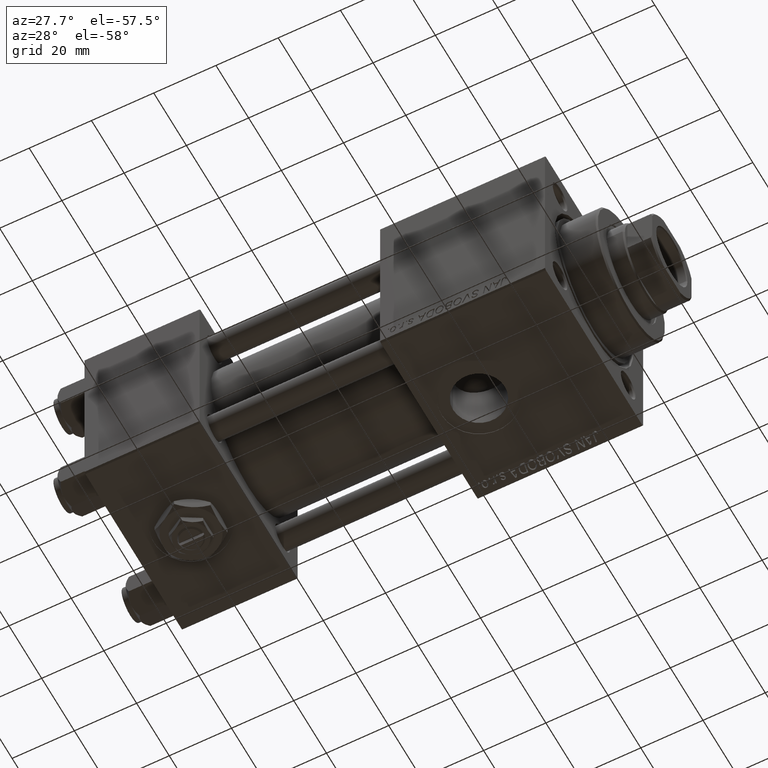
[diagram: clean part render]
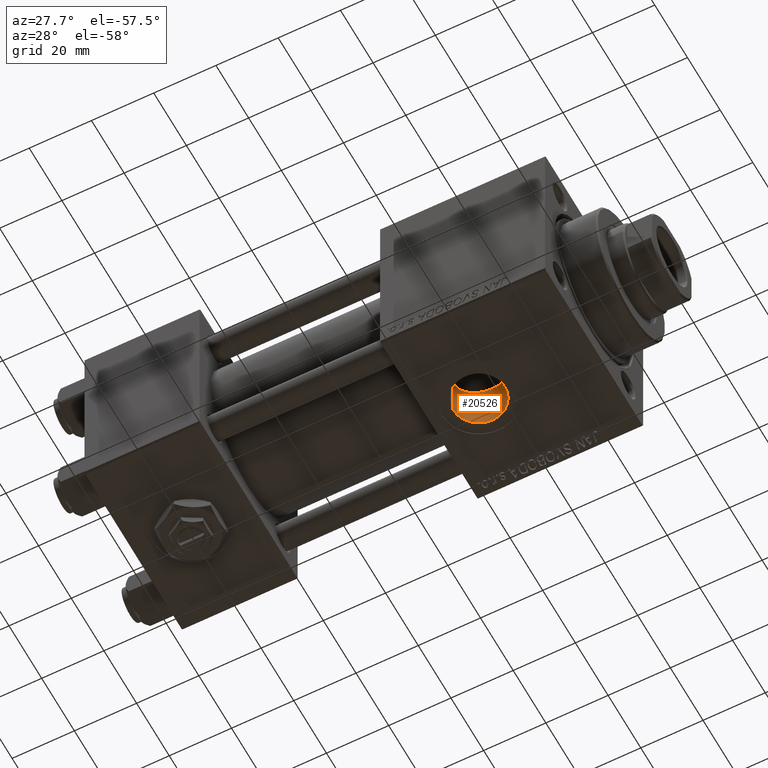
[diagram: same view with one face highlighted and labeled with its STEP entity id]
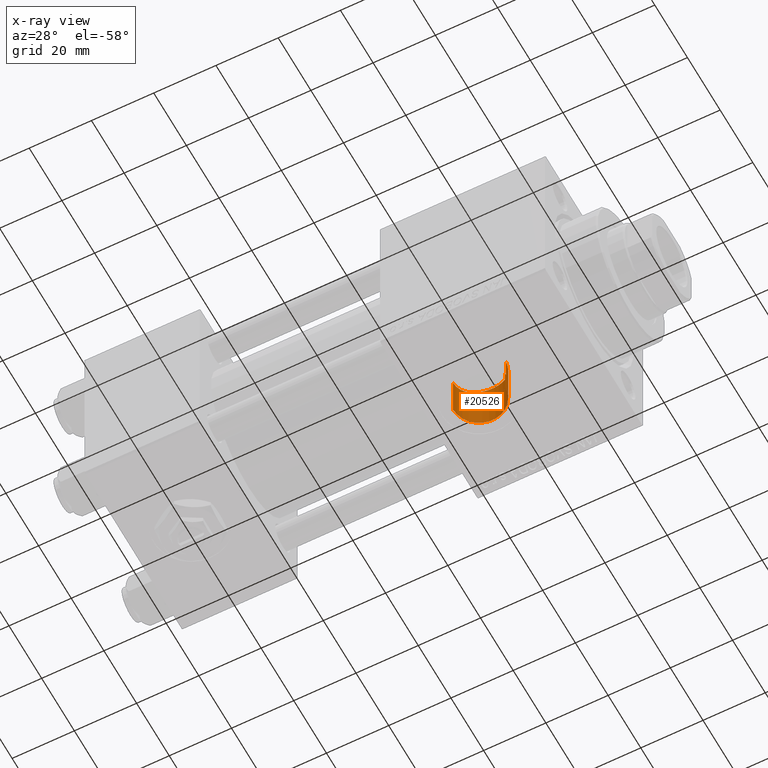
[diagram: x-ray of the same camera — body ghosted, the highlighted face saturated]
A machine part, auxiliary view. The second image highlights one B-rep face of the part: STEP entity #20526.
The next image is the same camera in x-ray: the body ghosted, the highlighted face saturated — about 0% of this face is hidden behind the body in this view.
In plain terms, the highlighted cylindrical surface (edge-blend (fillet) strip) has radius 8.33 mm, axis along (-0, -0, -1).
Its self-contained STEP definition (entity closure, byte-faithful):
#84 = CARTESIAN_POINT ( 'NONE',  ( 102.7241636785291661, 1.092628521130927011, -15.47069851291994702 ) ) ;
#999 = CARTESIAN_POINT ( 'NONE',  ( 119.2999999999999829, 0.7063285354565422836, 30.00100000000002254 ) ) ;
#2366 = DIRECTION ( 'NONE',  ( -1.000000000000000000, 0.000000000000000000, 0.000000000000000000 ) ) ;
#2750 = CARTESIAN_POINT ( 'NONE',  ( 103.7482205783579872, 4.107379890074528639, -14.94784029201489695 ) ) ;
#2889 = CYLINDRICAL_SURFACE ( 'NONE', #11455, 8.330000000000003624 ) ;
#2996 = CARTESIAN_POINT ( 'NONE',  ( 118.8608968568053257, 2.807338721058672881, -15.25250935042505240 ) ) ;
#3259 = CARTESIAN_POINT ( 'NONE',  ( 109.5815972184918508, 8.212856289219738315, -13.14537772390143822 ) ) ;
#3791 = CARTESIAN_POINT ( 'NONE',  ( 112.5374356531859519, 8.191334636277414205, -13.15881439070363079 ) ) ;
#3807 = CARTESIAN_POINT ( 'NONE',  ( 102.6700000000000017, 3.469446951953613794E-15, 30.00100000000002254 ) ) ;
#4362 = VECTOR ( 'NONE', #36032, 1000.000000000000000 ) ;
#5356 = CARTESIAN_POINT ( 'NONE',  ( 111.0000000000000000, 3.469446951953613794E-15, -29.79999999999999716 ) ) ;
#5409 = VERTEX_POINT ( 'NONE', #24785 ) ;
#6959 = CARTESIAN_POINT ( 'NONE',  ( 118.6620067053760579, 3.310790277918178148, -15.15004979849471844 ) ) ;
#7213 = CARTESIAN_POINT ( 'NONE',  ( 117.9018301075746535, 4.693553005916263565, -14.77882288425788282 ) ) ;
#7389 = B_SPLINE_CURVE_WITH_KNOTS ( 'NONE', 3,
 ( #39714, #36013, #15928, #2996, #6959, #23067, #7213, #23322, #31524, #47664, #52148, #39191, #19098, #19626, #35224, #32038, #39452, #15144, #14886, #31776, #3791, #15670, #47397, #35761, #51108, #3259, #44232, #19358, #28063, #48180, #35491, #11433, #22803, #38933, #51896, #23856, #47919, #19876, #2750, #18844, #39989, #34968, #47143, #84, #40776, #17237 ),
 .UNSPECIFIED., .F., .F.,
 ( 4, 2, 2, 2, 2, 2, 2, 2, 2, 2, 2, 2, 2, 2, 2, 2, 2, 2, 2, 2, 2, 2, 4 ),
 ( 0.02727877960990376244, 0.02889237716072041995, 0.03050597471153707746, 0.03211957226235373497, 0.03292637103776206026, 0.03373316981317039248, 0.03453996858857871777, 0.03534676736398704999, 0.03696036491480367281, 0.03776716369021198422, 0.03857396246562030256, 0.04018756001643689069, 0.04099435879184516046, 0.04180115756725343718, 0.04260795634266170695, 0.04341475511806998366, 0.04502835266888653015, 0.04664195021970307664, 0.04825554777051961619, 0.04906234654592787903, 0.04986914532133614186, 0.05148274287215264672, 0.05309634042296915157 ),
 .UNSPECIFIED. ) ;
#8112 = CARTESIAN_POINT ( 'NONE',  ( 119.3300000000000125, 0.2354428451521807242, -22.50000000000000355 ) ) ;
#8820 = B_SPLINE_CURVE_WITH_KNOTS ( 'NONE', 3,
 ( #51998, #15519, #8112, #20522 ),
 .UNSPECIFIED., .F., .F.,
 ( 4, 4 ),
 ( 3.252606517456513302E-19, 0.0007063285354565423772 ),
 .UNSPECIFIED. ) ;
#9195 = EDGE_CURVE ( 'NONE', #41752, #16056, #32331, .T. ) ;
#9691 = DIRECTION ( 'NONE',  ( 0.000000000000000000, 0.000000000000000000, 1.000000000000000000 ) ) ;
#10124 = VERTEX_POINT ( 'NONE', #39746 ) ;
#10631 = EDGE_CURVE ( 'NONE', #10124, #41752, #7389, .T. ) ;
#11433 = CARTESIAN_POINT ( 'NONE',  ( 107.0634977992651500, 7.360363982442543751, -13.64326802313376241 ) ) ;
#11444 = VECTOR ( 'NONE', #9691, 1000.000000000000000 ) ;
#11455 = AXIS2_PLACEMENT_3D ( 'NONE', #50996, #30623, #2366 ) ;
#14886 = CARTESIAN_POINT ( 'NONE',  ( 113.3248544130090636, 8.003497372844002200, -13.27403859793056284 ) ) ;
#15144 = CARTESIAN_POINT ( 'NONE',  ( 113.5785975221357944, 7.925227669577924239, -13.32109288933258817 ) ) ;
#15519 = CARTESIAN_POINT ( 'NONE',  ( 119.3200361445783102, 0.4708856903043617259, -22.49630535626710071 ) ) ;
#15670 = CARTESIAN_POINT ( 'NONE',  ( 111.7376232254467823, 8.314799938780428334, -13.08141961516124319 ) ) ;
#15928 = CARTESIAN_POINT ( 'NONE',  ( 119.1553276736675855, 1.779179761350267786, -15.40632050673880293 ) ) ;
#16056 = VERTEX_POINT ( 'NONE', #34819 ) ;
#16708 = EDGE_LOOP ( 'NONE', ( #33289, #27555, #25087, #24022, #31730, #26397 ) ) ;
#17237 = CARTESIAN_POINT ( 'NONE',  ( 102.6700000000000017, -1.540743955509788682E-30, -15.50000000000000000 ) ) ;
#17786 = VERTEX_POINT ( 'NONE', #18066 ) ;
#18066 = CARTESIAN_POINT ( 'NONE',  ( 119.2999999999999829, 0.7063285354565420615, -22.48891060056043756 ) ) ;
#18844 = CARTESIAN_POINT ( 'NONE',  ( 103.5022274938523026, 3.638994612196399636, -15.06871650703464205 ) ) ;
#19098 = CARTESIAN_POINT ( 'NONE',  ( 116.1151320338252759, 6.579683458588015732, -14.03519798445459799 ) ) ;
#19358 = CARTESIAN_POINT ( 'NONE',  ( 108.7963523345408703, 8.037691448606349098, -13.25333470569585259 ) ) ;
#19626 = CARTESIAN_POINT ( 'NONE',  ( 115.6938544255937273, 6.886547812221742504, -13.88720548231497354 ) ) ;
#19829 = EDGE_CURVE ( 'NONE', #17786, #10124, #29752, .T. ) ;
#19876 = CARTESIAN_POINT ( 'NONE',  ( 103.8834302777606950, 4.337338501916159217, -14.88255844981647158 ) ) ;
#20522 = CARTESIAN_POINT ( 'NONE',  ( 119.3300000000000125, -2.805347151146962182E-23, -22.50000000000000355 ) ) ;
#20526 = ADVANCED_FACE ( 'NONE', ( #23465 ), #2889, .F. ) ;
#20782 = VECTOR ( 'NONE', #35047, 1000.000000000000000 ) ;
#21457 = DIRECTION ( 'NONE',  ( 0.000000000000000000, 0.000000000000000000, -1.000000000000000000 ) ) ;
#22207 = EDGE_CURVE ( 'NONE', #34164, #5409, #38760, .T. ) ;
#22803 = CARTESIAN_POINT ( 'NONE',  ( 106.6106925150427855, 7.098942783672828938, -13.78287255468627137 ) ) ;
#23067 = CARTESIAN_POINT ( 'NONE',  ( 118.1826588342739086, 4.251716252057783585, -14.91335810852857868 ) ) ;
#23322 = CARTESIAN_POINT ( 'NONE',  ( 117.4187433732684127, 5.315786223261380172, -14.56161660820965054 ) ) ;
#23465 = FACE_OUTER_BOUND ( 'NONE', #16708, .T. ) ;
#23856 = CARTESIAN_POINT ( 'NONE',  ( 104.6391980563367525, 5.403576131623844425, -14.53319674159203245 ) ) ;
#24022 = ORIENTED_EDGE ( 'NONE', *, *, #10631, .T. ) ;
#24785 = CARTESIAN_POINT ( 'NONE',  ( 119.3300000000000125, 4.489577735643358162E-15, -29.79999999999999716 ) ) ;
#25087 = ORIENTED_EDGE ( 'NONE', *, *, #19829, .T. ) ;
#25839 = CARTESIAN_POINT ( 'NONE',  ( 119.3300000000000125, -2.805347151146962182E-23, -22.50000000000000355 ) ) ;
#26397 = ORIENTED_EDGE ( 'NONE', *, *, #47685, .T. ) ;
#27555 = ORIENTED_EDGE ( 'NONE', *, *, #34324, .F. ) ;
#28063 = CARTESIAN_POINT ( 'NONE',  ( 108.5404657518221825, 7.963067281542585363, -13.29848403413182467 ) ) ;
#29752 = LINE ( 'NONE', #999, #11444 ) ;
#29894 = DIRECTION ( 'NONE',  ( -1.000000000000000000, 0.000000000000000000, 0.000000000000000000 ) ) ;
#30037 = CARTESIAN_POINT ( 'NONE',  ( 102.6700000000000017, -1.540743955509788682E-30, -15.50000000000000000 ) ) ;
#30623 = DIRECTION ( 'NONE',  ( -0.000000000000000000, -0.000000000000000000, -1.000000000000000000 ) ) ;
#31524 = CARTESIAN_POINT ( 'NONE',  ( 117.2479702458790598, 5.515379064573072476, -14.48696430920223577 ) ) ;
#31550 = CIRCLE ( 'NONE', #42561, 8.330000000000003624 ) ;
#31730 = ORIENTED_EDGE ( 'NONE', *, *, #9195, .T. ) ;
#31776 = CARTESIAN_POINT ( 'NONE',  ( 112.8048813492921312, 8.136542358630352467, -13.19290526543283271 ) ) ;
#32038 = CARTESIAN_POINT ( 'NONE',  ( 114.7956503352217368, 7.433569550751719213, -13.60453305702427151 ) ) ;
#32331 = LINE ( 'NONE', #3807, #4362 ) ;
#33289 = ORIENTED_EDGE ( 'NONE', *, *, #22207, .F. ) ;
#34164 = VERTEX_POINT ( 'NONE', #25839 ) ;
#34324 = EDGE_CURVE ( 'NONE', #17786, #34164, #8820, .T. ) ;
#34539 = CARTESIAN_POINT ( 'NONE',  ( 119.3300000000000125, 4.489577735643358951E-15, 30.00100000000002254 ) ) ;
#34819 = CARTESIAN_POINT ( 'NONE',  ( 102.6700000000000017, 3.469446951953613794E-15, -29.79999999999999716 ) ) ;
#34968 = CARTESIAN_POINT ( 'NONE',  ( 103.0906070865618176, 2.666358102782450779, -15.27710347356947906 ) ) ;
#35047 = DIRECTION ( 'NONE',  ( -0.000000000000000000, -0.000000000000000000, -1.000000000000000000 ) ) ;
#35224 = CARTESIAN_POINT ( 'NONE',  ( 115.4735599200253660, 7.031725682592123050, -13.81403825520099815 ) ) ;
#35491 = CARTESIAN_POINT ( 'NONE',  ( 107.7885244497427806, 7.690634022803783054, -13.45808598588849314 ) ) ;
#35761 = CARTESIAN_POINT ( 'NONE',  ( 110.3922559065901083, 8.312184026702224671, -13.08272774722226295 ) ) ;
#36013 = CARTESIAN_POINT ( 'NONE',  ( 119.2536820019019217, 1.250606962443002734, -15.45906975460399124 ) ) ;
#36032 = DIRECTION ( 'NONE',  ( -0.000000000000000000, -0.000000000000000000, -1.000000000000000000 ) ) ;
#38760 = LINE ( 'NONE', #34539, #20782 ) ;
#38933 = CARTESIAN_POINT ( 'NONE',  ( 105.7593576539440221, 6.495896908363572919, -14.07714061379288317 ) ) ;
#39191 = CARTESIAN_POINT ( 'NONE',  ( 116.3173420786649501, 6.417306257002467262, -14.11039409599221983 ) ) ;
#39452 = CARTESIAN_POINT ( 'NONE',  ( 114.3225526011867572, 7.656862242170721977, -13.47833291352841023 ) ) ;
#39714 = CARTESIAN_POINT ( 'NONE',  ( 119.2999999999999829, 0.7063285354565425056, -15.48389808801387701 ) ) ;
#39746 = CARTESIAN_POINT ( 'NONE',  ( 119.2999999999999829, 0.7063285354565425056, -15.48389808801387701 ) ) ;
#39989 = CARTESIAN_POINT ( 'NONE',  ( 103.3907522286500438, 3.399707899520329590, -15.12462644882657692 ) ) ;
#40776 = CARTESIAN_POINT ( 'NONE',  ( 102.6700000000000017, 0.5462833394564592382, -15.50000000000000888 ) ) ;
#41752 = VERTEX_POINT ( 'NONE', #30037 ) ;
#42561 = AXIS2_PLACEMENT_3D ( 'NONE', #5356, #21457, #29894 ) ;
#44232 = CARTESIAN_POINT ( 'NONE',  ( 109.3169185482030628, 8.162584375251523028, -13.17678188941068740 ) ) ;
#47143 = CARTESIAN_POINT ( 'NONE',  ( 102.9358319788708229, 2.156965004806843833, -15.35851071982212268 ) ) ;
#47397 = CARTESIAN_POINT ( 'NONE',  ( 111.2013453415003141, 8.345045521793670318, -13.06181035101956667 ) ) ;
#47664 = CARTESIAN_POINT ( 'NONE',  ( 116.8917415872772381, 5.894397296422161148, -14.33693208583905587 ) ) ;
#47685 = EDGE_CURVE ( 'NONE', #16056, #5409, #31550, .T. ) ;
#47919 = CARTESIAN_POINT ( 'NONE',  ( 104.3151084731711791, 4.997779991288269663, -14.67938691936112861 ) ) ;
#48180 = CARTESIAN_POINT ( 'NONE',  ( 108.0371016572001821, 7.789799911330691273, -13.40071399134633801 ) ) ;
#50996 = CARTESIAN_POINT ( 'NONE',  ( 111.0000000000000000, 3.469446951953613794E-15, 30.00100000000002254 ) ) ;
#51108 = CARTESIAN_POINT ( 'NONE',  ( 110.1203638691635973, 8.287889668383224162, -13.09820021133159074 ) ) ;
#51896 = CARTESIAN_POINT ( 'NONE',  ( 105.3593747123109381, 6.151567502730274306, -14.23273198649609306 ) ) ;
#51998 = CARTESIAN_POINT ( 'NONE',  ( 119.2999999999999829, 0.7063285354565420615, -22.48891060056043756 ) ) ;
#52148 = CARTESIAN_POINT ( 'NONE',  ( 116.7056476024477263, 6.074663102953679505, -14.26125903719543153 ) ) ;